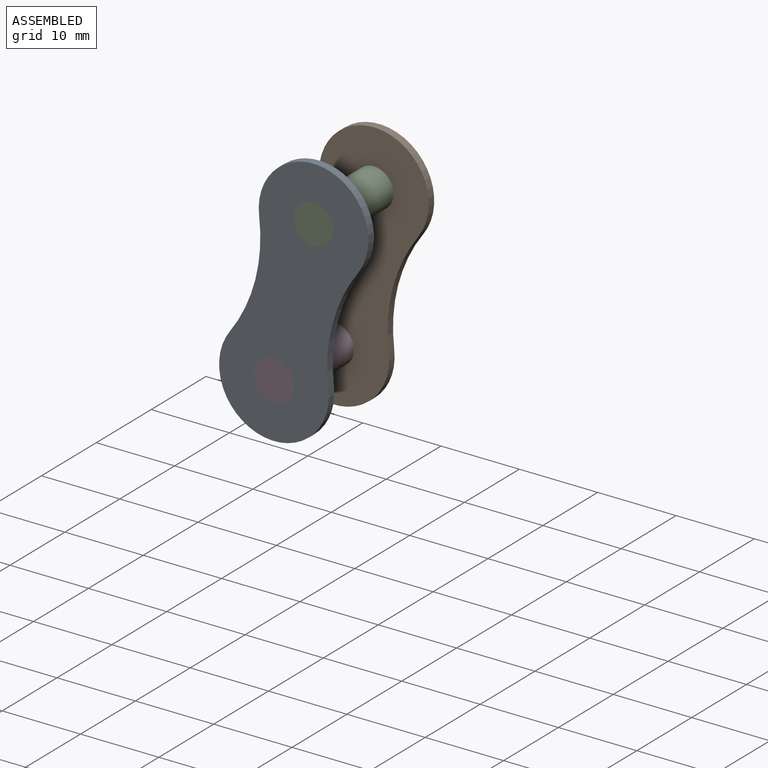
[diagram: assembled view]
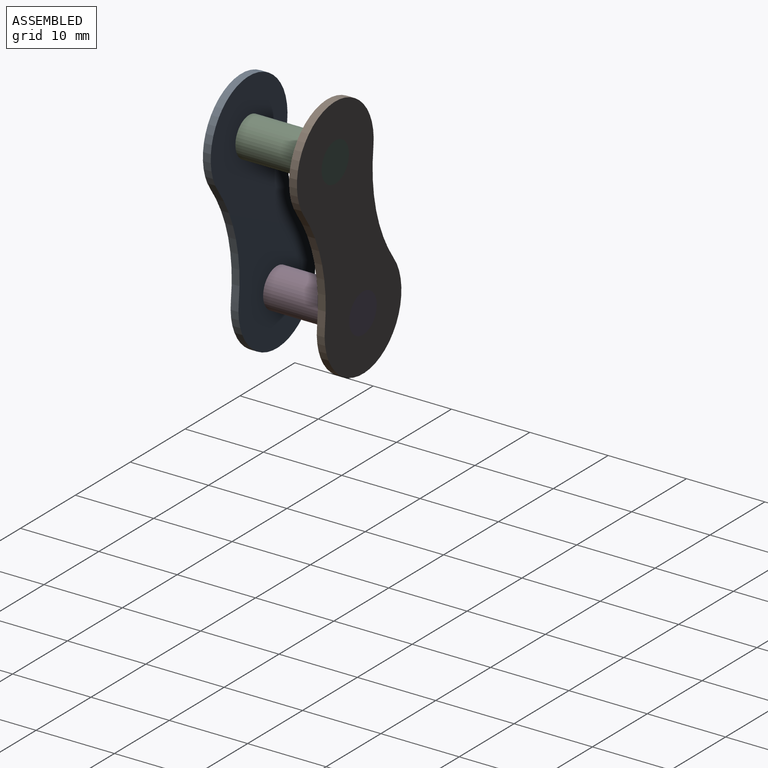
[diagram: assembled view, second angle]
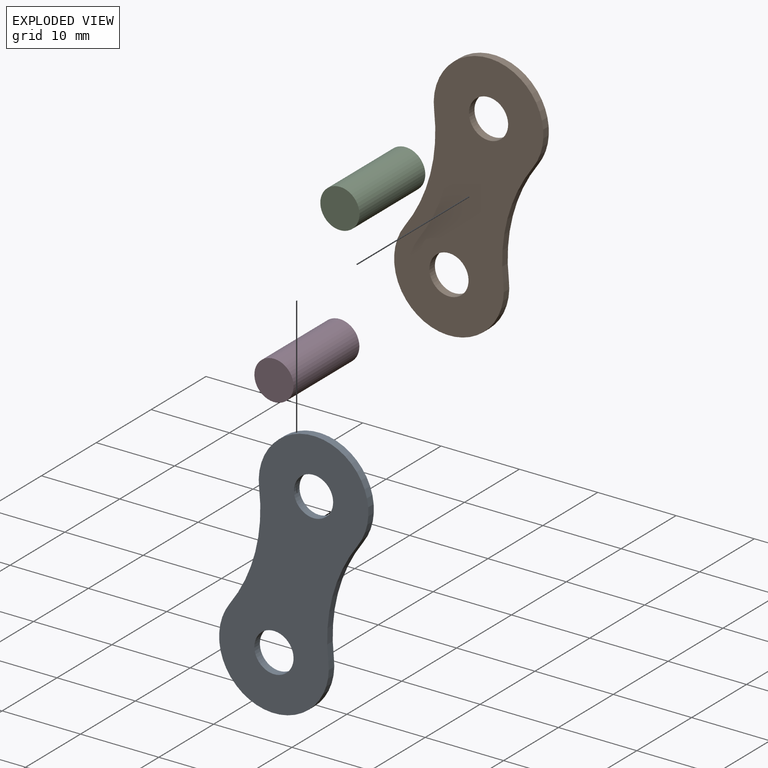
[diagram: exploded view]
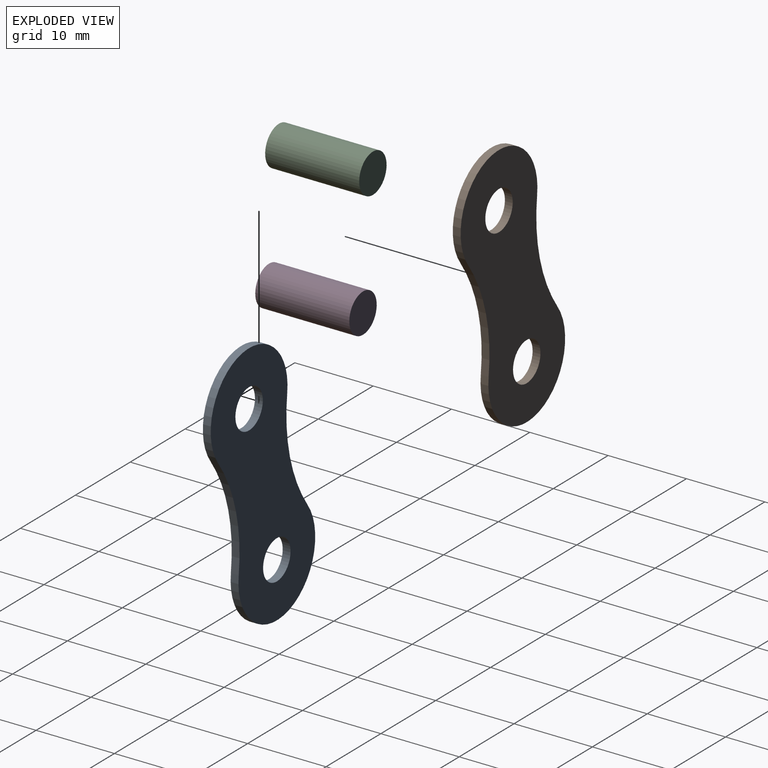
[diagram: exploded view, second angle]
ASSEMBLY  parts=4 mates=3
PART A: 8 faces, bbox 14x1x34 mm
  f0: cylinder r=20mm len=14.82mm, axis (0,1,0), area 15.2mm2, adj f1,f5,f6,f7
  f1: cylinder r=7mm len=14mm, axis (0,1,0), area 27.3mm2, adj f0,f2,f6,f7
  f2: cylinder r=20mm len=14.82mm, axis (0,1,0), area 15.2mm2, adj f1,f5,f6,f7
  f3: cylinder r=2.5mm len=5mm, axis (0,1,0), area 15.7mm2, adj f6,f7
  f4: cylinder r=2.5mm len=5mm, axis (0,1,0), area 15.7mm2, adj f6,f7
  f5: cylinder r=7mm len=14mm, axis (0,1,0), area 27.3mm2, adj f0,f2,f6,f7
  f6: plane 34x14mm, normal (0,-1,0), area 349.9mm2, adj f0,f1,f2,f3,f4,f5
  f7: plane 34x14mm, normal (0,1,0), area 349.9mm2, adj f0,f1,f2,f3,f4,f5
PART B: same geometry as A
PART C: 3 faces, bbox 5x12x5 mm
  f0: cylinder r=2.5mm len=12mm, axis (0,1,0), area 188.5mm2, adj f1,f2
  f1: plane 5x5mm, normal (0,-1,0), area 19.6mm2, adj f0
  f2: plane 5x5mm, normal (0,1,0), area 19.6mm2, adj f0
PART D: same geometry as C
PLACE A rot(axis=(0,1,0),14.6deg) t=(19.41,5.77,20.45)mm
PLACE B rot(axis=(0,1,0),14.6deg) t=(19.41,16.77,20.45)mm
PLACE C rot(axis=(0,1,0),14.6deg) t=(19.41,16.77,20.45)mm
PLACE D rot(axis=(0,1,0),14.6deg) t=(14.35,16.77,1.09)mm
MATE fastened D.f0 <-> A.f1  axis (0,-1,0) through (14.35,4.77,1.09)mm
MATE fastened D.f0 <-> B.f1  axis (0,1,0) through (14.35,16.77,1.09)mm
MATE fastened C.f0 <-> A.f3  axis (0,-1,0) through (19.41,4.77,20.45)mm
